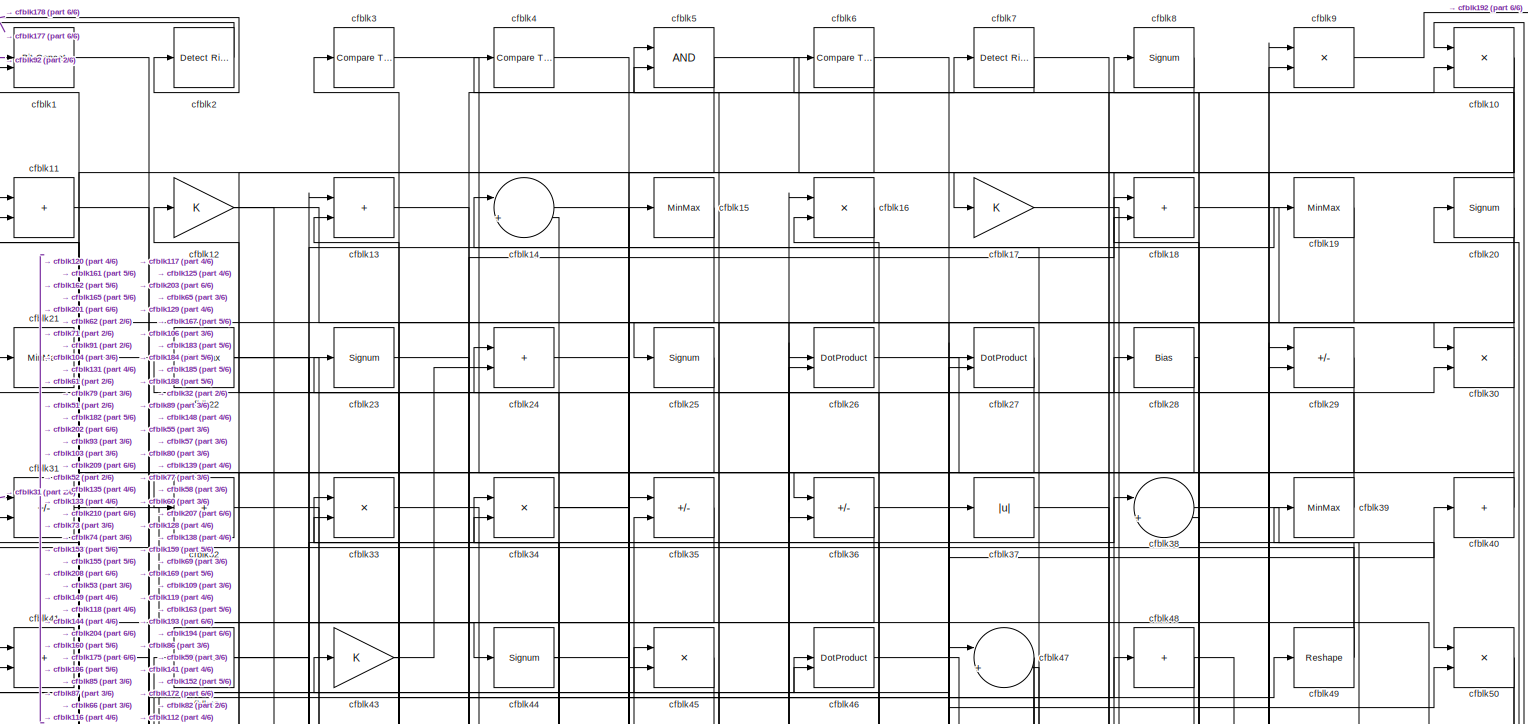
[diagram: root canvas - part 1/6, full width, top band]
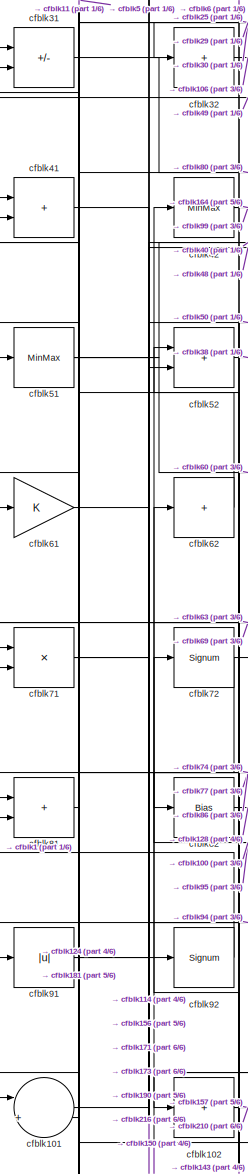
[diagram: root canvas - part 2/6, top left region]
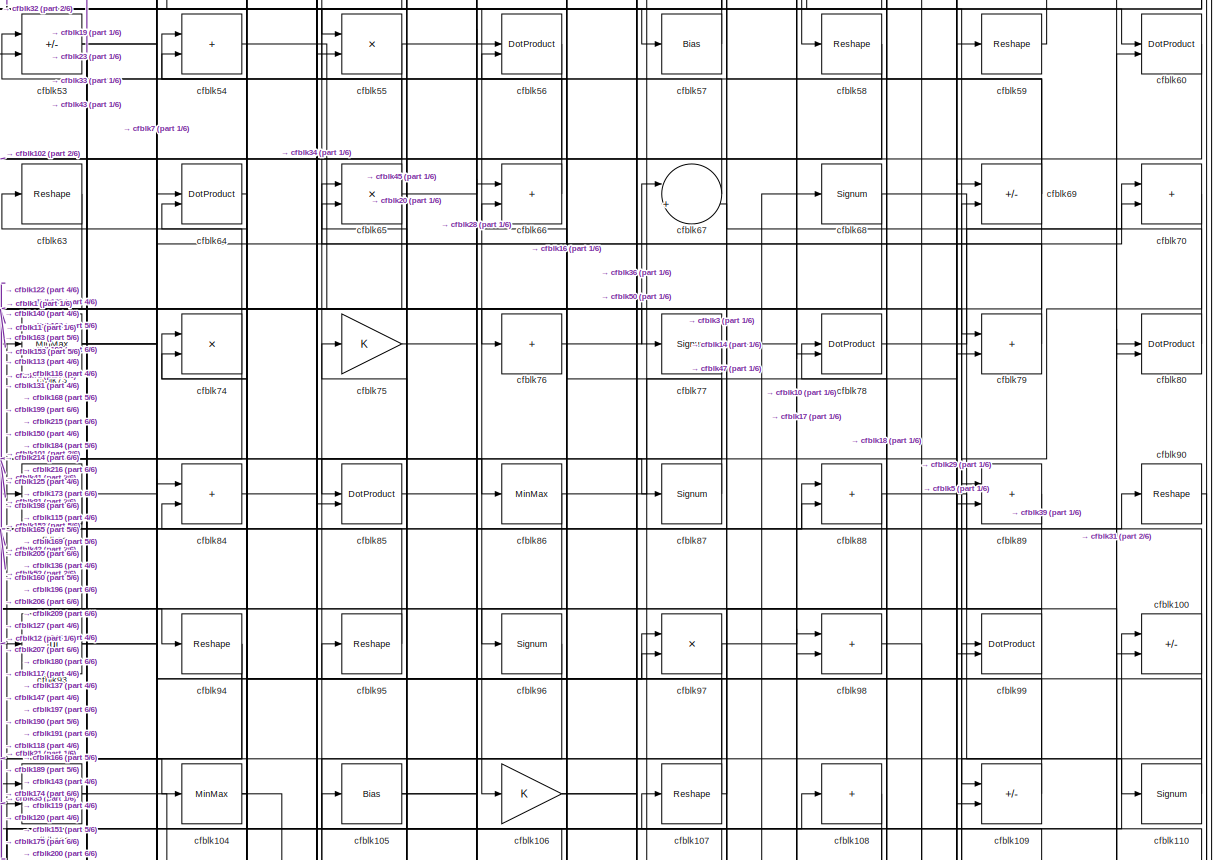
[diagram: root canvas - part 3/6, full width, middle band]
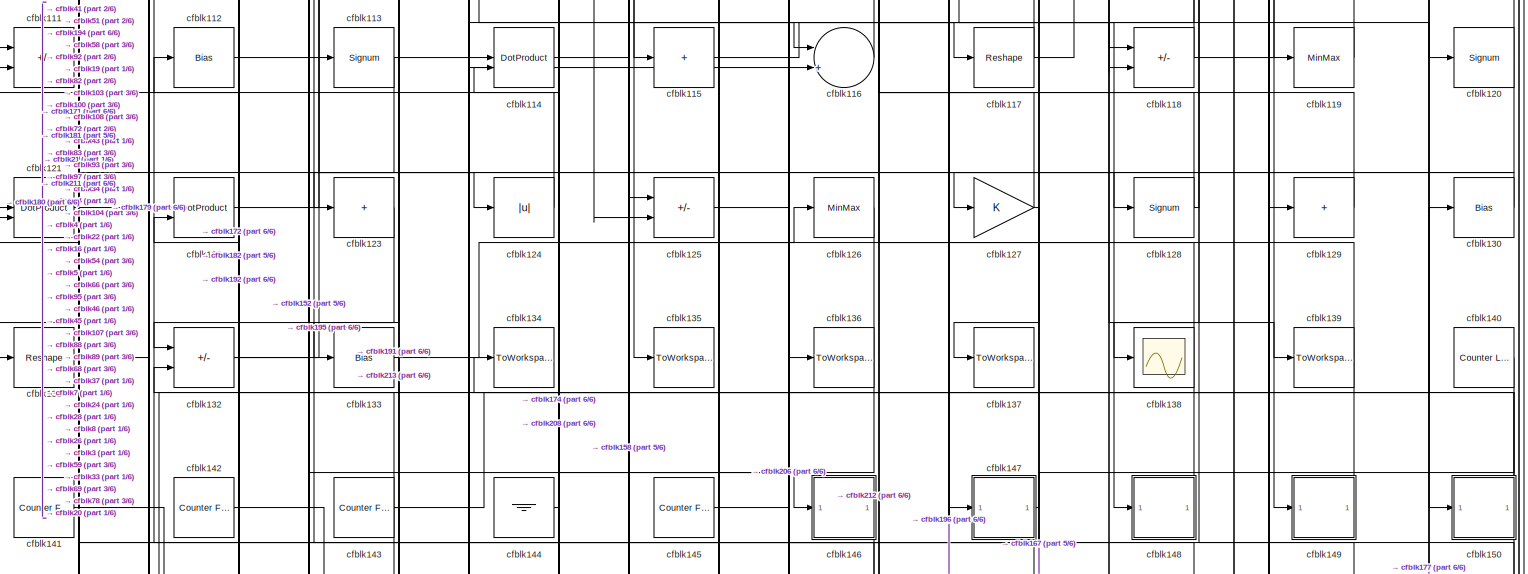
[diagram: root canvas - part 4/6, full width, middle band]
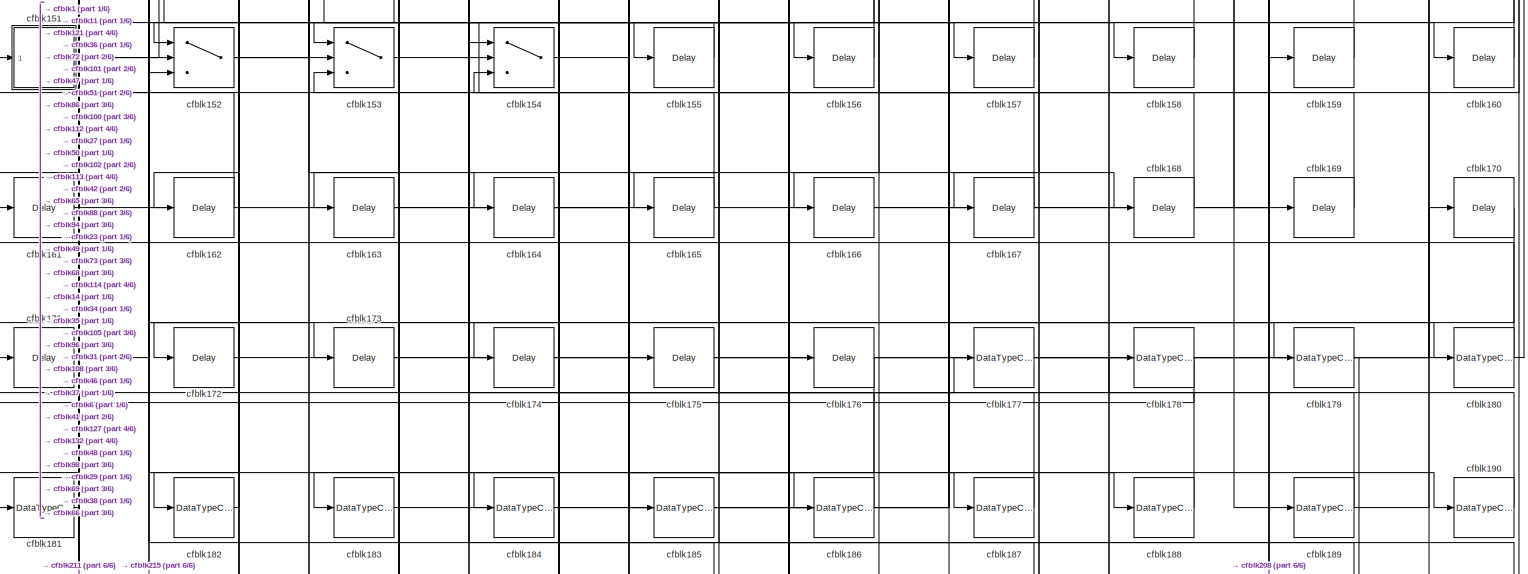
[diagram: root canvas - part 5/6, full width, bottom band]
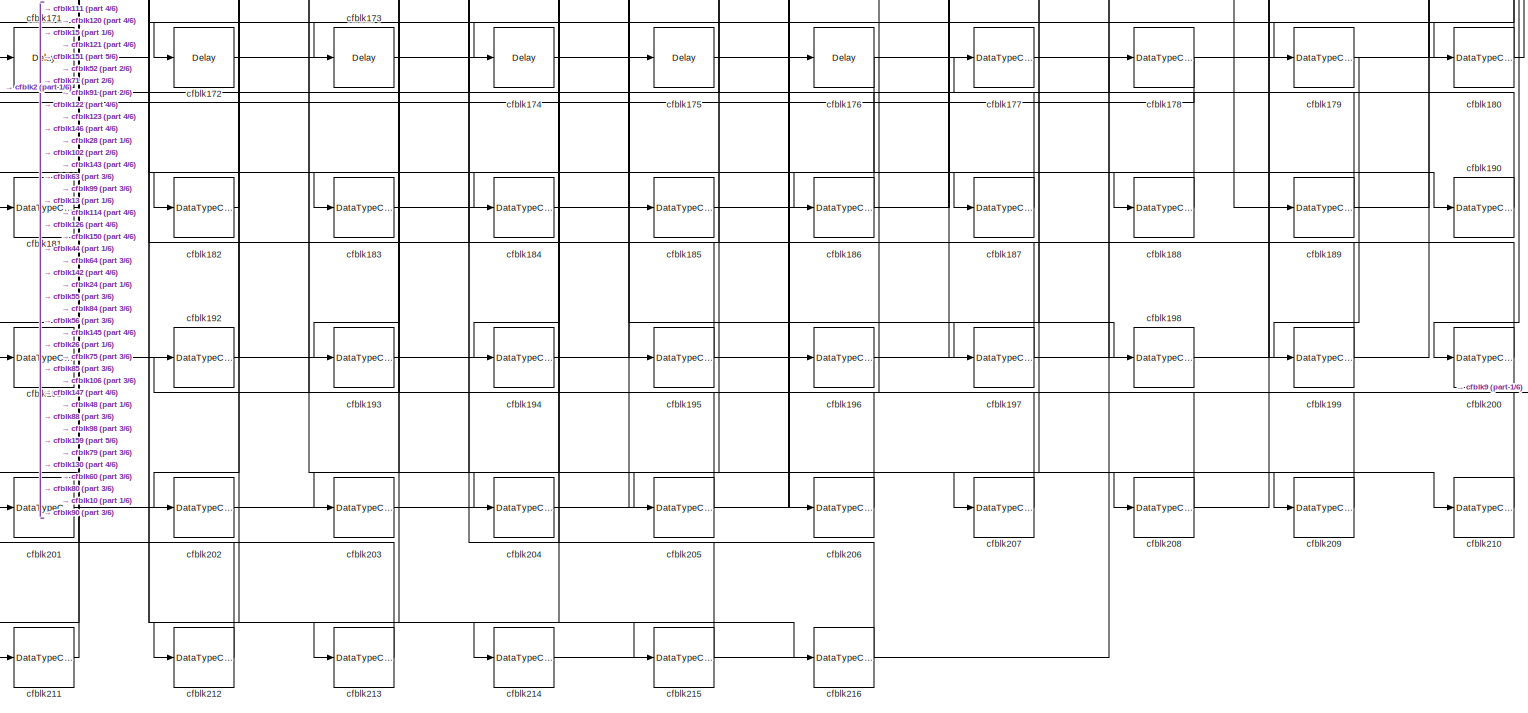
[diagram: root canvas - part 6/6, full width, bottom band]
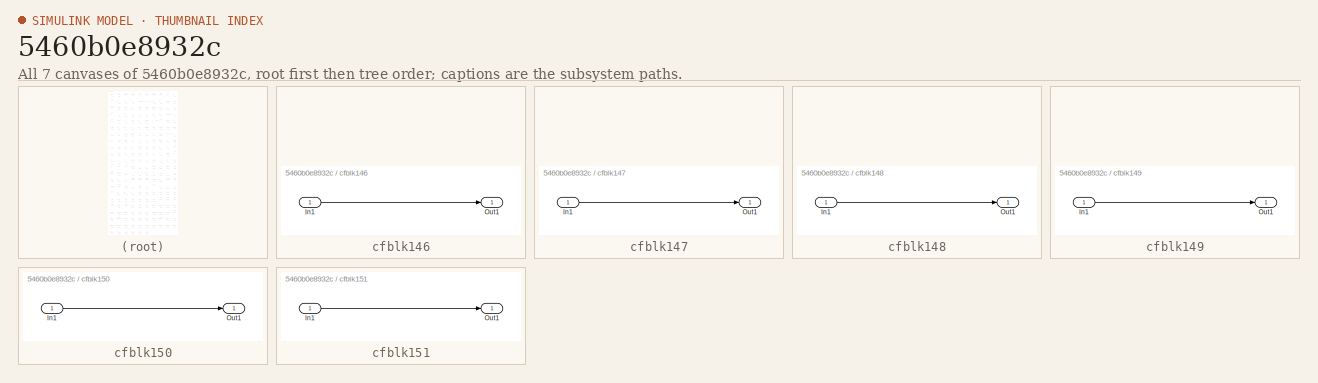
[diagram: thumbnail index - all 7 canvases of the model, root first then tree order]
MODEL slx_5460b0e8932c
KIND model
CONFIG AbsTol = auto
CONFIG EnableMultiTasking = off
CONFIG FixedStep = auto
CONFIG MaxStep = auto
CONFIG MinStep = auto
CONFIG RelTol = 1e-3
CONFIG SampleTimeConstraint = Unconstrained
CONFIG SolverName = VariableStepAuto
CONFIG StartTime = 0.0
CONFIG StopTime = 10.0
BLOCK [Reference] cfblk1  REF=hdlsllib/Logic and Bit
Operations/Bit Concat
  SourceBlock = hdlsllib/Logic and Bit\nOperations/Bit Concat
  SourceType = Bit Concat
BLOCK [Product] cfblk10
  Inputs = */
  RndMeth = Zero
  SaturateOnIntegerOverflow = on
BLOCK [Sum] cfblk100
  IconShape = rectangular
  Inputs = +-
BLOCK [Sum] cfblk101
  Inputs = |++
BLOCK [Sum] cfblk102
  IconShape = rectangular
  Inputs = +
BLOCK [Sum] cfblk103
  IconShape = rectangular
BLOCK [MinMax] cfblk104
BLOCK [Bias] cfblk105
  Bias = 0.0
  SaturateOnIntegerOverflow = off
BLOCK [Gain] cfblk106
BLOCK [Reshape] cfblk107
BLOCK [Sum] cfblk108
  IconShape = rectangular
  Inputs = +
BLOCK [Sum] cfblk109
  IconShape = rectangular
  Inputs = +-
BLOCK [Sum] cfblk11
  IconShape = rectangular
BLOCK [Signum] cfblk110
BLOCK [Sum] cfblk111
  IconShape = rectangular
  Inputs = +-
BLOCK [Bias] cfblk112
  Bias = 0.0
  SaturateOnIntegerOverflow = off
BLOCK [Signum] cfblk113
BLOCK [DotProduct] cfblk114
  OutDataTypeStr = Inherit: Inherit via internal rule
BLOCK [Sum] cfblk115
  IconShape = rectangular
  Inputs = +
BLOCK [Sum] cfblk116
  Inputs = |++
BLOCK [Reshape] cfblk117
BLOCK [Sum] cfblk118
  IconShape = rectangular
  Inputs = +-
BLOCK [MinMax] cfblk119
BLOCK [Gain] cfblk12
BLOCK [Signum] cfblk120
BLOCK [DotProduct] cfblk121
  OutDataTypeStr = Inherit: Inherit via internal rule
BLOCK [DotProduct] cfblk122
  OutDataTypeStr = Inherit: Inherit via internal rule
BLOCK [Sum] cfblk123
  IconShape = rectangular
  Inputs = +
BLOCK [Abs] cfblk124
  SaturateOnIntegerOverflow = off
BLOCK [Sum] cfblk125
  IconShape = rectangular
  Inputs = +-
BLOCK [MinMax] cfblk126
BLOCK [Gain] cfblk127
BLOCK [Signum] cfblk128
BLOCK [Sum] cfblk129
  IconShape = rectangular
  Inputs = +
BLOCK [Sum] cfblk13
  IconShape = rectangular
BLOCK [Bias] cfblk130
  Bias = 0.0
  SaturateOnIntegerOverflow = off
BLOCK [Reshape] cfblk131
BLOCK [Sum] cfblk132
  IconShape = rectangular
  Inputs = +-
BLOCK [Bias] cfblk133
  Bias = 0.0
  SaturateOnIntegerOverflow = off
BLOCK [ToWorkspace] cfblk134
  MaxDataPoints = inf
  SampleTime = -1
  SaveFormat = Timeseries
  VariableName = simout
BLOCK [ToWorkspace] cfblk135
  MaxDataPoints = inf
  SampleTime = -1
  SaveFormat = Timeseries
  VariableName = simout
BLOCK [ToWorkspace] cfblk136
  MaxDataPoints = inf
  SampleTime = -1
  SaveFormat = Timeseries
  VariableName = simout
BLOCK [ToWorkspace] cfblk137
  MaxDataPoints = inf
  SampleTime = -1
  SaveFormat = Timeseries
  VariableName = simout
BLOCK [Scope] cfblk138
  Floating = off
  NumInputPorts = 1
  ScopeSpecificationString = Simulink.scopes.TimeScopeBlockCfg('CurrentConfiguration', extmgr.ConfigurationSet(extmgr.Configuration('Core','General UI',true),extmgr.Configuration('Core','Source UI',true),extmgr.Configuration('Sources','WiredSimulink',true,'DataLoggingVariableName','ScopeData2','DataLoggingSaveFormat','Array','DataLoggingLimitDataPoints',true,'DataLoggingDecimation','1'),extmgr.Configuration('Visuals','Time Do...<+868ch>
BLOCK [ToWorkspace] cfblk139
  MaxDataPoints = inf
  SampleTime = -1
  SaveFormat = Timeseries
  VariableName = simout
BLOCK [Sum] cfblk14
  Inputs = |++
BLOCK [Reference] cfblk140  REF=hdlsllib/Sources/Counter
Limited
  SourceBlock = hdlsllib/Sources/Counter\nLimited
  SourceType = Counter Limited
BLOCK [Reference] cfblk141  REF=hdlsllib/Sources/Counter
Free-Running
  SourceBlock = hdlsllib/Sources/Counter\nFree-Running
  SourceType = Counter Free-Running
BLOCK [Reference] cfblk142  REF=hdlsllib/Sources/Counter
Free-Running
  SourceBlock = hdlsllib/Sources/Counter\nFree-Running
  SourceType = Counter Free-Running
BLOCK [Reference] cfblk143  REF=hdlsllib/Sources/Counter
Free-Running
  SourceBlock = hdlsllib/Sources/Counter\nFree-Running
  SourceType = Counter Free-Running
BLOCK [Ground] cfblk144
BLOCK [Reference] cfblk145  REF=hdlsllib/Sources/Counter
Free-Running
  SourceBlock = hdlsllib/Sources/Counter\nFree-Running
  SourceType = Counter Free-Running
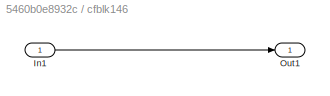
BLOCK [SubSystem] cfblk146
  LibrarySourceBlock = hdlsllib/Ports &\nSubsystems/Subsystem
BLOCK [Inport] cfblk146/In1
BLOCK [Outport] cfblk146/Out1
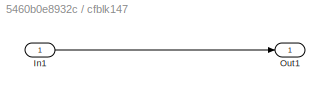
BLOCK [SubSystem] cfblk147
  LibrarySourceBlock = hdlsllib/Ports &\nSubsystems/Subsystem
BLOCK [Inport] cfblk147/In1
BLOCK [Outport] cfblk147/Out1
BLOCK [SubSystem] cfblk148
  LibrarySourceBlock = hdlsllib/Ports &\nSubsystems/Subsystem
BLOCK [Inport] cfblk148/In1
BLOCK [Outport] cfblk148/Out1
BLOCK [SubSystem] cfblk149
  LibrarySourceBlock = hdlsllib/Ports &\nSubsystems/Subsystem
BLOCK [Inport] cfblk149/In1
BLOCK [Outport] cfblk149/Out1
BLOCK [MinMax] cfblk15
BLOCK [SubSystem] cfblk150
  LibrarySourceBlock = hdlsllib/Ports &\nSubsystems/Subsystem
BLOCK [Inport] cfblk150/In1
BLOCK [Outport] cfblk150/Out1
BLOCK [SubSystem] cfblk151
  LibrarySourceBlock = hdlsllib/Ports &\nSubsystems/Subsystem
BLOCK [Inport] cfblk151/In1
BLOCK [Outport] cfblk151/Out1
BLOCK [Switch] cfblk152
  InputSameDT = off
  SaturateOnIntegerOverflow = off
BLOCK [Switch] cfblk153
  InputSameDT = off
  SaturateOnIntegerOverflow = off
BLOCK [Switch] cfblk154
  InputSameDT = off
  SaturateOnIntegerOverflow = off
BLOCK [Delay] cfblk155
  InputPortMap = u0
  SampleTime = 1
BLOCK [Delay] cfblk156
  InputPortMap = u0
  SampleTime = 1
BLOCK [Delay] cfblk157
  InputPortMap = u0
  SampleTime = 1
BLOCK [Delay] cfblk158
  InputPortMap = u0
  SampleTime = 1
BLOCK [Delay] cfblk159
  InputPortMap = u0
  SampleTime = 1
BLOCK [Product] cfblk16
  Inputs = */
  RndMeth = Zero
  SaturateOnIntegerOverflow = on
BLOCK [Delay] cfblk160
  InputPortMap = u0
  SampleTime = 1
BLOCK [Delay] cfblk161
  InputPortMap = u0
  SampleTime = 1
BLOCK [Delay] cfblk162
  InputPortMap = u0
  SampleTime = 1
BLOCK [Delay] cfblk163
  InputPortMap = u0
  SampleTime = 1
BLOCK [Delay] cfblk164
  InputPortMap = u0
  SampleTime = 1
BLOCK [Delay] cfblk165
  InputPortMap = u0
  SampleTime = 1
BLOCK [Delay] cfblk166
  InputPortMap = u0
  SampleTime = 1
BLOCK [Delay] cfblk167
  InputPortMap = u0
  SampleTime = 1
BLOCK [Delay] cfblk168
  InputPortMap = u0
  SampleTime = 1
BLOCK [Delay] cfblk169
  InputPortMap = u0
  SampleTime = 1
BLOCK [Gain] cfblk17
BLOCK [Delay] cfblk170
  InputPortMap = u0
  SampleTime = 1
BLOCK [Delay] cfblk171
  InputPortMap = u0
  SampleTime = 1
BLOCK [Delay] cfblk172
  InputPortMap = u0
  SampleTime = 1
BLOCK [Delay] cfblk173
  InputPortMap = u0
  SampleTime = 1
BLOCK [Delay] cfblk174
  InputPortMap = u0
  SampleTime = 1
BLOCK [Delay] cfblk175
  InputPortMap = u0
  SampleTime = 1
BLOCK [Delay] cfblk176
  InputPortMap = u0
  SampleTime = 1
BLOCK [DataTypeConversion] cfblk177
  OutDataTypeStr = uint8
  RndMeth = Floor
  SaturateOnIntegerOverflow = off
BLOCK [DataTypeConversion] cfblk178
  OutDataTypeStr = uint8
  RndMeth = Floor
  SaturateOnIntegerOverflow = off
BLOCK [DataTypeConversion] cfblk179
  OutDataTypeStr = uint8
  RndMeth = Floor
  SaturateOnIntegerOverflow = off
BLOCK [Sum] cfblk18
  IconShape = rectangular
BLOCK [DataTypeConversion] cfblk180
  OutDataTypeStr = uint8
  RndMeth = Floor
  SaturateOnIntegerOverflow = off
BLOCK [DataTypeConversion] cfblk181
  OutDataTypeStr = uint8
  RndMeth = Floor
  SaturateOnIntegerOverflow = off
BLOCK [DataTypeConversion] cfblk182
  OutDataTypeStr = uint8
  RndMeth = Floor
  SaturateOnIntegerOverflow = off
BLOCK [DataTypeConversion] cfblk183
  OutDataTypeStr = uint8
  RndMeth = Floor
  SaturateOnIntegerOverflow = off
BLOCK [DataTypeConversion] cfblk184
  OutDataTypeStr = uint8
  RndMeth = Floor
  SaturateOnIntegerOverflow = off
BLOCK [DataTypeConversion] cfblk185
  OutDataTypeStr = uint8
  RndMeth = Floor
  SaturateOnIntegerOverflow = off
BLOCK [DataTypeConversion] cfblk186
  OutDataTypeStr = uint8
  RndMeth = Floor
  SaturateOnIntegerOverflow = off
BLOCK [DataTypeConversion] cfblk187
  OutDataTypeStr = uint8
  RndMeth = Floor
  SaturateOnIntegerOverflow = off
BLOCK [DataTypeConversion] cfblk188
  OutDataTypeStr = uint8
  RndMeth = Floor
  SaturateOnIntegerOverflow = off
BLOCK [DataTypeConversion] cfblk189
  RndMeth = Floor
  SaturateOnIntegerOverflow = off
BLOCK [MinMax] cfblk19
BLOCK [DataTypeConversion] cfblk190
  OutDataTypeStr = uint8
  RndMeth = Floor
  SaturateOnIntegerOverflow = off
BLOCK [DataTypeConversion] cfblk191
  OutDataTypeStr = uint8
  RndMeth = Floor
  SaturateOnIntegerOverflow = off
BLOCK [DataTypeConversion] cfblk192
  OutDataTypeStr = uint8
  RndMeth = Floor
  SaturateOnIntegerOverflow = off
BLOCK [DataTypeConversion] cfblk193
  OutDataTypeStr = uint8
  RndMeth = Floor
  SaturateOnIntegerOverflow = off
BLOCK [DataTypeConversion] cfblk194
  OutDataTypeStr = uint8
  RndMeth = Floor
  SaturateOnIntegerOverflow = off
BLOCK [DataTypeConversion] cfblk195
  OutDataTypeStr = uint8
  RndMeth = Floor
  SaturateOnIntegerOverflow = off
BLOCK [DataTypeConversion] cfblk196
  OutDataTypeStr = uint8
  RndMeth = Floor
  SaturateOnIntegerOverflow = off
BLOCK [DataTypeConversion] cfblk197
  OutDataTypeStr = uint8
  RndMeth = Floor
  SaturateOnIntegerOverflow = off
BLOCK [DataTypeConversion] cfblk198
  OutDataTypeStr = uint8
  RndMeth = Floor
  SaturateOnIntegerOverflow = off
BLOCK [DataTypeConversion] cfblk199
  OutDataTypeStr = uint8
  RndMeth = Floor
  SaturateOnIntegerOverflow = off
BLOCK [Reference] cfblk2  REF=hdlsllib/Logic and Bit
Operations/Detect Rise
Positive
  SourceBlock = hdlsllib/Logic and Bit\nOperations/Detect Rise\nPositive
  SourceType = Detect Rise Positive
BLOCK [Signum] cfblk20
BLOCK [DataTypeConversion] cfblk200
  OutDataTypeStr = uint8
  RndMeth = Floor
  SaturateOnIntegerOverflow = off
BLOCK [DataTypeConversion] cfblk201
  OutDataTypeStr = uint8
  RndMeth = Floor
  SaturateOnIntegerOverflow = off
BLOCK [DataTypeConversion] cfblk202
  OutDataTypeStr = uint8
  RndMeth = Floor
  SaturateOnIntegerOverflow = off
BLOCK [DataTypeConversion] cfblk203
  OutDataTypeStr = uint8
  RndMeth = Floor
  SaturateOnIntegerOverflow = off
BLOCK [DataTypeConversion] cfblk204
  OutDataTypeStr = uint8
  RndMeth = Floor
  SaturateOnIntegerOverflow = off
BLOCK [DataTypeConversion] cfblk205
  OutDataTypeStr = uint8
  RndMeth = Floor
  SaturateOnIntegerOverflow = off
BLOCK [DataTypeConversion] cfblk206
  OutDataTypeStr = uint8
  RndMeth = Floor
  SaturateOnIntegerOverflow = off
BLOCK [DataTypeConversion] cfblk207
  OutDataTypeStr = uint8
  RndMeth = Floor
  SaturateOnIntegerOverflow = off
BLOCK [DataTypeConversion] cfblk208
  RndMeth = Floor
  SaturateOnIntegerOverflow = off
BLOCK [DataTypeConversion] cfblk209
  OutDataTypeStr = uint8
  RndMeth = Floor
  SaturateOnIntegerOverflow = off
BLOCK [MinMax] cfblk21
BLOCK [DataTypeConversion] cfblk210
  OutDataTypeStr = uint8
  RndMeth = Floor
  SaturateOnIntegerOverflow = off
BLOCK [DataTypeConversion] cfblk211
  OutDataTypeStr = uint8
  RndMeth = Floor
  SaturateOnIntegerOverflow = off
BLOCK [DataTypeConversion] cfblk212
  OutDataTypeStr = uint8
  RndMeth = Floor
  SaturateOnIntegerOverflow = off
BLOCK [DataTypeConversion] cfblk213
  OutDataTypeStr = uint8
  RndMeth = Floor
  SaturateOnIntegerOverflow = off
BLOCK [DataTypeConversion] cfblk214
  OutDataTypeStr = uint8
  RndMeth = Floor
  SaturateOnIntegerOverflow = off
BLOCK [DataTypeConversion] cfblk215
  OutDataTypeStr = uint8
  RndMeth = Floor
  SaturateOnIntegerOverflow = off
BLOCK [DataTypeConversion] cfblk216
  OutDataTypeStr = uint8
  RndMeth = Floor
  SaturateOnIntegerOverflow = off
BLOCK [MinMax] cfblk22
BLOCK [Signum] cfblk23
BLOCK [Sum] cfblk24
  IconShape = rectangular
BLOCK [Signum] cfblk25
BLOCK [DotProduct] cfblk26
  OutDataTypeStr = Inherit: Inherit via internal rule
BLOCK [DotProduct] cfblk27
  OutDataTypeStr = Inherit: Inherit via internal rule
BLOCK [Bias] cfblk28
  Bias = 0.0
  SaturateOnIntegerOverflow = off
BLOCK [Sum] cfblk29
  IconShape = rectangular
  Inputs = +-
BLOCK [Reference] cfblk3  REF=hdlsllib/Logic and Bit
Operations/Compare
To Zero
  SourceBlock = hdlsllib/Logic and Bit\nOperations/Compare\nTo Zero
  SourceType = Compare To Zero
BLOCK [Product] cfblk30
  Inputs = */
  RndMeth = Zero
  SaturateOnIntegerOverflow = on
BLOCK [Sum] cfblk31
  IconShape = rectangular
  Inputs = +-
BLOCK [Sum] cfblk32
  IconShape = rectangular
  Inputs = +
BLOCK [Product] cfblk33
  Inputs = */
  RndMeth = Zero
  SaturateOnIntegerOverflow = on
BLOCK [Product] cfblk34
  Inputs = */
  RndMeth = Zero
  SaturateOnIntegerOverflow = on
BLOCK [Sum] cfblk35
  IconShape = rectangular
  Inputs = +-
BLOCK [Sum] cfblk36
  IconShape = rectangular
  Inputs = +-
BLOCK [Abs] cfblk37
  SaturateOnIntegerOverflow = off
BLOCK [Sum] cfblk38
  Inputs = |++
BLOCK [MinMax] cfblk39
BLOCK [Reference] cfblk4  REF=hdlsllib/Logic and Bit
Operations/Compare
To Zero
  SourceBlock = hdlsllib/Logic and Bit\nOperations/Compare\nTo Zero
  SourceType = Compare To Zero
BLOCK [Sum] cfblk40
  IconShape = rectangular
  Inputs = +
BLOCK [Sum] cfblk41
  IconShape = rectangular
BLOCK [MinMax] cfblk42
BLOCK [Gain] cfblk43
BLOCK [Signum] cfblk44
BLOCK [Product] cfblk45
  Inputs = */
  RndMeth = Zero
  SaturateOnIntegerOverflow = on
BLOCK [DotProduct] cfblk46
  OutDataTypeStr = Inherit: Inherit via internal rule
BLOCK [Sum] cfblk47
  Inputs = |++
BLOCK [Sum] cfblk48
  IconShape = rectangular
  Inputs = +
BLOCK [Reshape] cfblk49
BLOCK [Logic] cfblk5
  AllPortsSameDT = off
  OutDataTypeStr = boolean
BLOCK [Product] cfblk50
  Inputs = */
  RndMeth = Zero
  SaturateOnIntegerOverflow = on
BLOCK [MinMax] cfblk51
BLOCK [Sum] cfblk52
  IconShape = rectangular
BLOCK [Sum] cfblk53
  IconShape = rectangular
  Inputs = +-
BLOCK [Sum] cfblk54
  IconShape = rectangular
BLOCK [Product] cfblk55
  Inputs = */
  RndMeth = Zero
  SaturateOnIntegerOverflow = on
BLOCK [DotProduct] cfblk56
  OutDataTypeStr = Inherit: Inherit via internal rule
BLOCK [Bias] cfblk57
  Bias = 0.0
  SaturateOnIntegerOverflow = off
BLOCK [Reshape] cfblk58
BLOCK [Reshape] cfblk59
BLOCK [Reference] cfblk6  REF=hdlsllib/Logic and Bit
Operations/Compare
To Zero
  SourceBlock = hdlsllib/Logic and Bit\nOperations/Compare\nTo Zero
  SourceType = Compare To Zero
BLOCK [DotProduct] cfblk60
  OutDataTypeStr = Inherit: Inherit via internal rule
BLOCK [Gain] cfblk61
BLOCK [Sum] cfblk62
  IconShape = rectangular
  Inputs = +
BLOCK [Reshape] cfblk63
BLOCK [DotProduct] cfblk64
  OutDataTypeStr = Inherit: Inherit via internal rule
BLOCK [Product] cfblk65
  Inputs = */
  RndMeth = Zero
  SaturateOnIntegerOverflow = on
BLOCK [Sum] cfblk66
  IconShape = rectangular
BLOCK [Sum] cfblk67
  Inputs = |++
BLOCK [Signum] cfblk68
BLOCK [Sum] cfblk69
  IconShape = rectangular
  Inputs = +-
BLOCK [Reference] cfblk7  REF=hdlsllib/Logic and Bit
Operations/Detect Rise
Positive
  SourceBlock = hdlsllib/Logic and Bit\nOperations/Detect Rise\nPositive
  SourceType = Detect Rise Positive
BLOCK [Sum] cfblk70
  IconShape = rectangular
BLOCK [Product] cfblk71
  Inputs = */
  RndMeth = Zero
  SaturateOnIntegerOverflow = on
BLOCK [Signum] cfblk72
BLOCK [MinMax] cfblk73
BLOCK [Product] cfblk74
  Inputs = */
  RndMeth = Zero
  SaturateOnIntegerOverflow = on
BLOCK [Gain] cfblk75
BLOCK [Sum] cfblk76
  IconShape = rectangular
  Inputs = +
BLOCK [Signum] cfblk77
BLOCK [DotProduct] cfblk78
  OutDataTypeStr = Inherit: Inherit via internal rule
BLOCK [Sum] cfblk79
  IconShape = rectangular
BLOCK [Signum] cfblk8
BLOCK [DotProduct] cfblk80
  OutDataTypeStr = Inherit: Inherit via internal rule
BLOCK [Sum] cfblk81
  IconShape = rectangular
BLOCK [Bias] cfblk82
  Bias = 0.0
  SaturateOnIntegerOverflow = off
BLOCK [Bias] cfblk83
  Bias = 0.0
  SaturateOnIntegerOverflow = off
BLOCK [Sum] cfblk84
  IconShape = rectangular
BLOCK [DotProduct] cfblk85
  OutDataTypeStr = Inherit: Inherit via internal rule
BLOCK [MinMax] cfblk86
BLOCK [Signum] cfblk87
BLOCK [Sum] cfblk88
  IconShape = rectangular
BLOCK [Sum] cfblk89
  IconShape = rectangular
BLOCK [Product] cfblk9
  Inputs = */
  RndMeth = Zero
  SaturateOnIntegerOverflow = on
BLOCK [Reshape] cfblk90
BLOCK [Abs] cfblk91
  SaturateOnIntegerOverflow = off
BLOCK [Signum] cfblk92
BLOCK [Abs] cfblk93
  SaturateOnIntegerOverflow = off
BLOCK [Reshape] cfblk94
BLOCK [Reshape] cfblk95
BLOCK [Signum] cfblk96
BLOCK [Product] cfblk97
  Inputs = */
  RndMeth = Zero
  SaturateOnIntegerOverflow = on
BLOCK [Sum] cfblk98
  IconShape = rectangular
BLOCK [DotProduct] cfblk99
  OutDataTypeStr = Inherit: Inherit via internal rule
NET cfblk100:1 -> cfblk109:1, cfblk52:1
LINE cfblk101:1 -> cfblk156:1
NET cfblk102:1 -> cfblk157:1, cfblk210:1
NET cfblk103:1 -> cfblk150:1, cfblk43:1
NET cfblk104:1 -> cfblk125:2, cfblk74:1
NET cfblk105:1 -> cfblk88:2, cfblk99:1
NET cfblk106:1 -> cfblk180:1, cfblk50:2
NET cfblk107:1 -> cfblk67:2, cfblk74:2
LINE cfblk108:1 -> cfblk166:1
LINE cfblk109:1 -> cfblk54:2
NET cfblk10:1 -> cfblk58:1, cfblk85:2
LINE cfblk110:1 -> cfblk54:1
LINE cfblk111:1 -> cfblk211:1
LINE cfblk112:1 -> cfblk19:1
NET cfblk113:1 -> cfblk123:1, cfblk97:1
LINE cfblk114:1 -> cfblk158:1
LINE cfblk115:1 -> cfblk117:1
LINE cfblk116:1 -> cfblk5:1
NET cfblk117:1 -> cfblk45:1, cfblk68:1
NET cfblk118:1 -> cfblk24:1, cfblk69:2
LINE cfblk119:1 -> cfblk78:1
LINE cfblk11:1 -> cfblk77:1
NET cfblk120:1 -> cfblk171:1, cfblk21:1
LINE cfblk121:1 -> cfblk179:1
LINE cfblk122:1 -> cfblk108:1
LINE cfblk123:1 -> cfblk172:1
LINE cfblk124:1 -> cfblk41:1
LINE cfblk125:1 -> cfblk16:1
LINE cfblk126:1 -> cfblk174:1
NET cfblk127:1 -> cfblk167:1, cfblk95:1
NET cfblk128:1 -> cfblk33:2, cfblk8:1
LINE cfblk129:1 -> cfblk22:1
NET cfblk12:1 -> cfblk47:1, cfblk93:1
LINE cfblk130:1 -> cfblk127:1
LINE cfblk131:1 -> cfblk46:1
NET cfblk132:1 -> cfblk100:1, cfblk146:1
LINE cfblk133:1 -> cfblk126:1
LINE cfblk13:1 -> cfblk208:1
LINE cfblk140:1 -> cfblk103:1
LINE cfblk141:1 -> cfblk20:1
LINE cfblk142:1 -> cfblk195:1
NET cfblk143:1 -> cfblk191:1, cfblk213:1, cfblk59:1, cfblk92:1
LINE cfblk144:1 -> cfblk34:2
LINE cfblk145:1 -> cfblk206:1
LINE cfblk146/In1:1 -> cfblk146/Out1:1
LINE cfblk146:1 -> cfblk212:1
LINE cfblk147/In1:1 -> cfblk147/Out1:1
LINE cfblk147:1 -> cfblk107:1
LINE cfblk148/In1:1 -> cfblk148/Out1:1
LINE cfblk148:1 -> cfblk66:2
LINE cfblk149/In1:1 -> cfblk149/Out1:1
LINE cfblk149:1 -> cfblk34:1
LINE cfblk14:1 -> cfblk186:1
LINE cfblk150/In1:1 -> cfblk150/Out1:1
NET cfblk150:1 -> cfblk134:1, cfblk194:1, cfblk72:1
LINE cfblk151/In1:1 -> cfblk151/Out1:1
NET cfblk151:1 -> cfblk100:2, cfblk215:1
NET cfblk152:1 -> cfblk113:1, cfblk88:1
LINE cfblk153:1 -> cfblk49:1
LINE cfblk154:1 -> cfblk185:1
LINE cfblk155:1 -> cfblk153:1
LINE cfblk156:1 -> cfblk31:2
LINE cfblk157:1 -> cfblk41:2
LINE cfblk158:1 -> cfblk132:2
LINE cfblk159:1 -> cfblk38:2
LINE cfblk15:1 -> cfblk201:1
LINE cfblk160:1 -> cfblk66:1
LINE cfblk161:1 -> cfblk35:1
LINE cfblk162:1 -> cfblk1:2
LINE cfblk163:1 -> cfblk29:2
LINE cfblk164:1 -> cfblk187:1
LINE cfblk165:1 -> cfblk11:2
LINE cfblk166:1 -> cfblk69:1
LINE cfblk167:1 -> cfblk46:2
LINE cfblk168:1 -> cfblk153:3
LINE cfblk169:1 -> cfblk65:2
LINE cfblk16:1 -> cfblk36:2
LINE cfblk170:1 -> cfblk183:1
LINE cfblk171:1 -> cfblk52:2
LINE cfblk172:1 -> cfblk10:1
LINE cfblk173:1 -> cfblk55:2
LINE cfblk174:1 -> cfblk79:2
LINE cfblk175:1 -> cfblk80:1
LINE cfblk176:1 -> cfblk203:1
LINE cfblk177:1 -> cfblk130:1
LINE cfblk178:1 -> cfblk2:1
LINE cfblk179:1 -> cfblk199:1
LINE cfblk17:1 -> cfblk60:1
LINE cfblk180:1 -> cfblk121:1
LINE cfblk181:1 -> cfblk121:2
LINE cfblk182:1 -> cfblk112:1
LINE cfblk183:1 -> cfblk27:1
LINE cfblk184:1 -> cfblk27:2
LINE cfblk185:1 -> cfblk37:1
LINE cfblk186:1 -> cfblk154:1
LINE cfblk187:1 -> cfblk154:2
LINE cfblk188:1 -> cfblk154:3
NET cfblk189:1 -> cfblk105:1, cfblk170:1
LINE cfblk18:1 -> cfblk30:1
LINE cfblk190:1 -> cfblk98:1
LINE cfblk191:1 -> cfblk98:2
LINE cfblk192:1 -> cfblk122:2
LINE cfblk193:1 -> cfblk9:1
LINE cfblk194:1 -> cfblk9:2
LINE cfblk195:1 -> cfblk122:1
LINE cfblk196:1 -> cfblk147:1
LINE cfblk197:1 -> cfblk75:1
LINE cfblk198:1 -> cfblk60:2
LINE cfblk199:1 -> cfblk84:1
LINE cfblk19:1 -> cfblk73:1
LINE cfblk1:1 -> cfblk79:1
LINE cfblk200:1 -> cfblk84:2
LINE cfblk201:1 -> cfblk26:1
LINE cfblk202:1 -> cfblk15:1
LINE cfblk203:1 -> cfblk26:2
LINE cfblk204:1 -> cfblk176:1
LINE cfblk205:1 -> cfblk63:1
LINE cfblk206:1 -> cfblk56:1
LINE cfblk207:1 -> cfblk56:2
NET cfblk208:1 -> cfblk114:2, cfblk159:1
LINE cfblk209:1 -> cfblk13:1
NET cfblk20:1 -> cfblk45:2, cfblk6:1, cfblk85:1
LINE cfblk210:1 -> cfblk13:2
LINE cfblk211:1 -> cfblk151:1
LINE cfblk212:1 -> cfblk111:1
LINE cfblk213:1 -> cfblk111:2
LINE cfblk214:1 -> cfblk178:1
LINE cfblk215:1 -> cfblk64:1
LINE cfblk216:1 -> cfblk64:2
LINE cfblk21:1 -> cfblk104:1
NET cfblk22:1 -> cfblk135:1, cfblk30:2, cfblk44:1
LINE cfblk23:1 -> cfblk155:1
LINE cfblk24:1 -> cfblk175:1
LINE cfblk25:1 -> cfblk61:1
LINE cfblk26:1 -> cfblk129:1
LINE cfblk27:1 -> cfblk182:1
NET cfblk28:1 -> cfblk138:1, cfblk202:1
LINE cfblk29:1 -> cfblk91:1
LINE cfblk2:1 -> cfblk177:1
NET cfblk30:1 -> cfblk25:1, cfblk51:1
LINE cfblk31:1 -> cfblk80:2
LINE cfblk32:1 -> cfblk106:1
LINE cfblk33:1 -> cfblk149:1
NET cfblk34:1 -> cfblk160:1, cfblk87:1
LINE cfblk35:1 -> cfblk103:2
NET cfblk36:1 -> cfblk161:1, cfblk89:2
LINE cfblk37:1 -> cfblk118:1
LINE cfblk38:1 -> cfblk50:1
LINE cfblk39:1 -> cfblk12:1
LINE cfblk3:1 -> cfblk119:1
LINE cfblk40:1 -> cfblk36:1
LINE cfblk41:1 -> cfblk86:1
NET cfblk42:1 -> cfblk164:1, cfblk99:2
NET cfblk43:1 -> cfblk133:1, cfblk24:2
NET cfblk44:1 -> cfblk118:2, cfblk204:1
LINE cfblk45:1 -> cfblk53:2
LINE cfblk46:1 -> cfblk148:1
NET cfblk47:1 -> cfblk152:2, cfblk55:1
NET cfblk48:1 -> cfblk169:1, cfblk207:1
NET cfblk49:1 -> cfblk31:1, cfblk4:1
LINE cfblk4:1 -> cfblk125:1
NET cfblk50:1 -> cfblk152:1, cfblk82:1
NET cfblk51:1 -> cfblk114:1, cfblk190:1, cfblk40:1
LINE cfblk52:1 -> cfblk38:1
NET cfblk53:1 -> cfblk78:2, cfblk7:1
LINE cfblk54:1 -> cfblk136:1
NET cfblk55:1 -> cfblk57:1, cfblk83:1
LINE cfblk56:1 -> cfblk205:1
LINE cfblk57:1 -> cfblk3:1
NET cfblk58:1 -> cfblk132:1, cfblk76:1
LINE cfblk59:1 -> cfblk39:1
NET cfblk5:1 -> cfblk109:2, cfblk71:1
LINE cfblk60:1 -> cfblk102:1
LINE cfblk61:1 -> cfblk48:1
LINE cfblk62:1 -> cfblk11:1
LINE cfblk63:1 -> cfblk81:2
LINE cfblk64:1 -> cfblk214:1
NET cfblk65:1 -> cfblk14:2, cfblk153:2, cfblk28:1
LINE cfblk66:1 -> cfblk35:2
LINE cfblk67:1 -> cfblk53:1
NET cfblk68:1 -> cfblk110:1, cfblk184:1
NET cfblk69:1 -> cfblk18:1, cfblk23:1, cfblk47:2, cfblk71:2
NET cfblk6:1 -> cfblk188:1, cfblk32:1
LINE cfblk70:1 -> cfblk89:1
NET cfblk71:1 -> cfblk216:1, cfblk94:1
NET cfblk72:1 -> cfblk124:1, cfblk181:1
NET cfblk73:1 -> cfblk168:1, cfblk18:2, cfblk70:2
NET cfblk74:1 -> cfblk101:1, cfblk33:1
LINE cfblk75:1 -> cfblk196:1
LINE cfblk76:1 -> cfblk67:1
NET cfblk77:1 -> cfblk10:2, cfblk81:1
LINE cfblk78:1 -> cfblk70:1
LINE cfblk79:1 -> cfblk65:1
NET cfblk7:1 -> cfblk139:1, cfblk5:2
LINE cfblk80:1 -> cfblk14:1
LINE cfblk81:1 -> cfblk101:2
LINE cfblk82:1 -> cfblk128:1
NET cfblk83:1 -> cfblk116:1, cfblk131:1
LINE cfblk84:1 -> cfblk198:1
LINE cfblk85:1 -> cfblk209:1
NET cfblk86:1 -> cfblk152:3, cfblk29:1
LINE cfblk87:1 -> cfblk16:2
NET cfblk88:1 -> cfblk120:1, cfblk197:1
LINE cfblk89:1 -> cfblk137:1
LINE cfblk8:1 -> cfblk17:1
LINE cfblk90:1 -> cfblk200:1
NET cfblk91:1 -> cfblk173:1, cfblk62:1
LINE cfblk92:1 -> cfblk1:1
NET cfblk93:1 -> cfblk116:2, cfblk97:2
NET cfblk94:1 -> cfblk162:1, cfblk163:1
LINE cfblk95:1 -> cfblk42:1
LINE cfblk96:1 -> cfblk165:1
NET cfblk97:1 -> cfblk115:1, cfblk90:1
LINE cfblk98:1 -> cfblk189:1
NET cfblk99:1 -> cfblk193:1, cfblk96:1
LINE cfblk9:1 -> cfblk192:1
note: NET lines group one-source signal fan-out (src -> all destinations, sorted); 1:1 wires keep LINE
